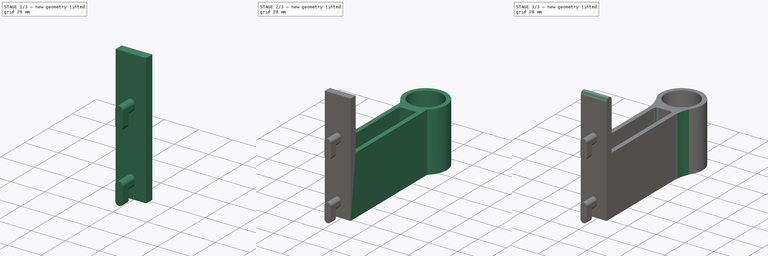
[diagram: build sequence overview — one tinted view per stage of 3, left to right]
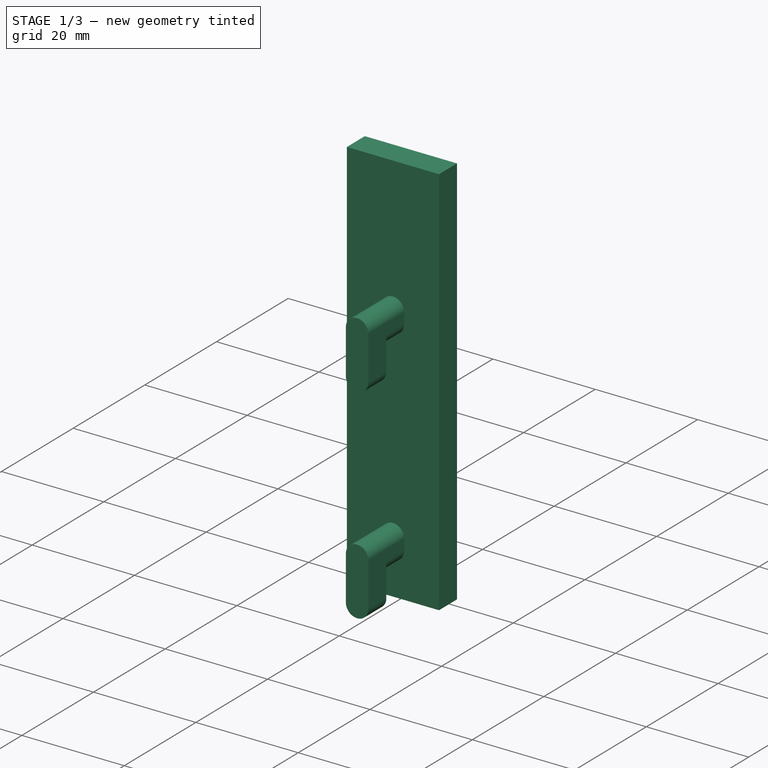
[diagram: stage 1 of 3 — iso view after this stage's code; geometry added in this stage tinted green]
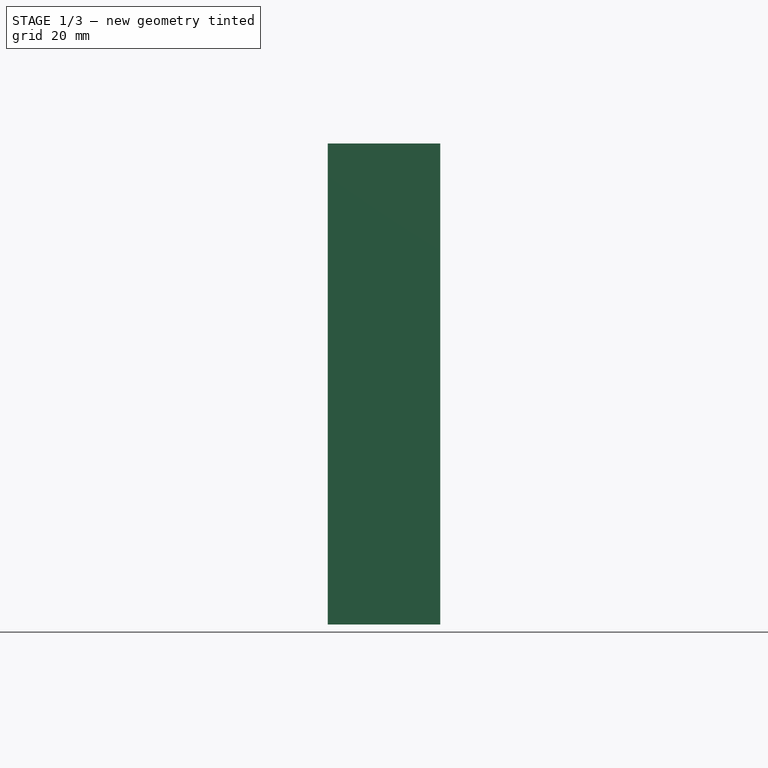
[diagram: stage 1 of 3 — front view after this stage's code; geometry added in this stage tinted green]
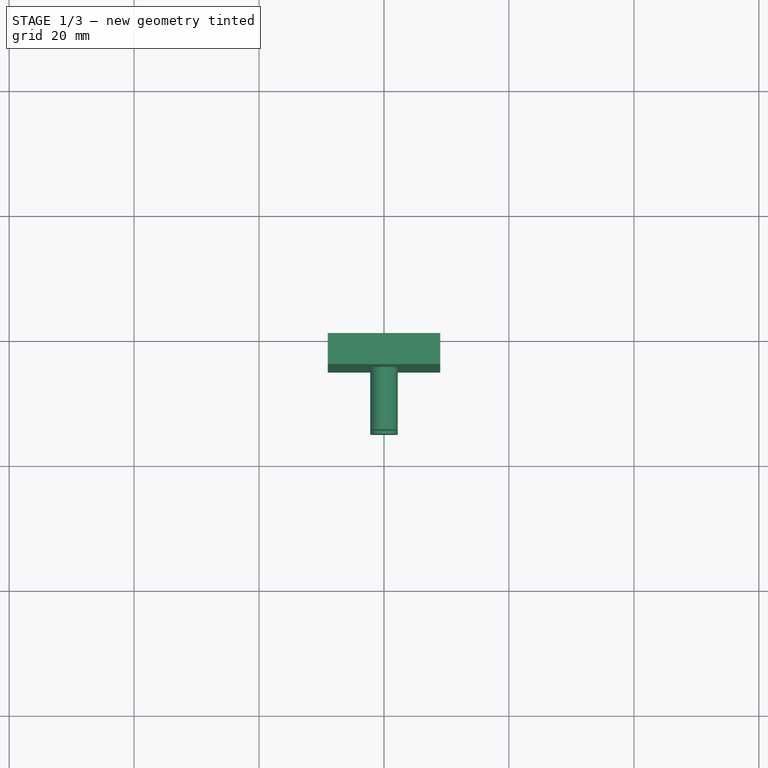
[diagram: stage 1 of 3 — top view after this stage's code; geometry added in this stage tinted green]
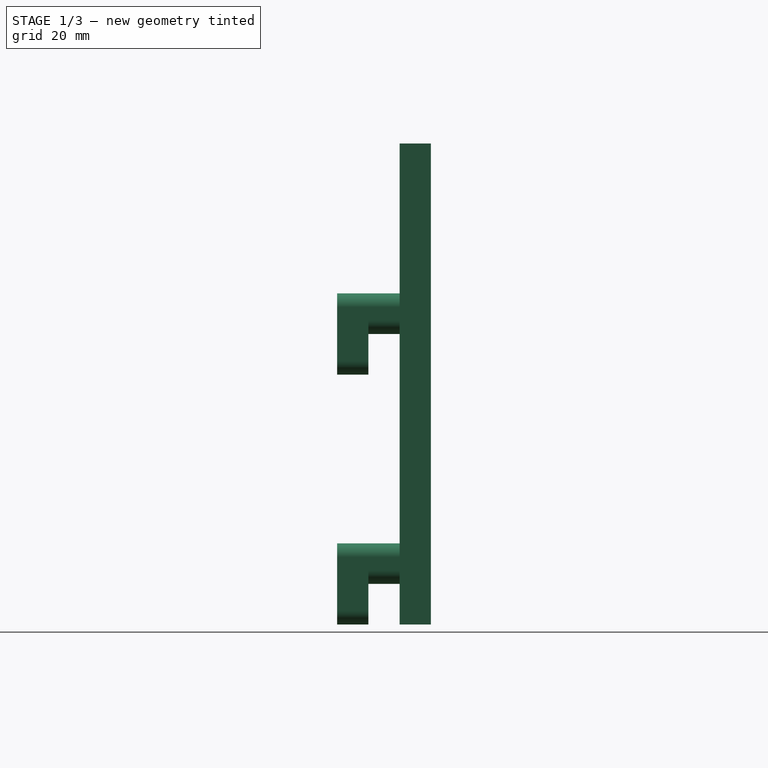
[diagram: stage 1 of 3 — right view after this stage's code; geometry added in this stage tinted green]
FCSTD DOCUMENT  (FreeCAD 1.0R39285 (Git))
Label: 01_Deburring_Tool_Holder
License: All rights reserved
LicenseURL: https://en.wikipedia.org/wiki/All_rights_reserved
objects: Sketcher::SketchObject×6, PartDesign::Pad×5, PartDesign::Fillet×2, PartDesign::Pocket×1, PartDesign::Body×1
note: 37 computed .brp shape members not serialized (recipe doc carries the construction recipe); baked Part::Feature solids carry a one-line shape summary decoded from their .brp

FEATURE [Sketcher::SketchObject] Sketch
  ArcFitTolerance = 1e-06
  AttachmentSupport = -> [XZ_Plane]
  FullyConstrained = true
  MakeInternals = false
  MapMode = 5
  Placement = pos=(0,0,0) rot=(1,0,0;1.5708rad)
  sketch-geometry (4):
    g0: LineSegment StartX=-9 StartY=77 StartZ=0 EndX=-9 EndY=0 EndZ=0
    g1: LineSegment StartX=-9 StartY=0 StartZ=0 EndX=9 EndY=0 EndZ=0
    g2: LineSegment StartX=9 StartY=0 StartZ=0 EndX=9 EndY=77 EndZ=0
    g3: LineSegment StartX=9 StartY=77 StartZ=0 EndX=-9 EndY=77 EndZ=0
  constraints (12):
    c: Coincident(g0,g1)
    c: Coincident(g1,g2)
    c: Coincident(g2,g3)
    c: Coincident(g3,g0)
    c: Vertical(g0)
    c: Vertical(g2)
    c: Horizontal(g1)
    c: Horizontal(g3)
    c: Distance(g0,g2) = 18
    c: Distance(g1,g3) = 77
    c: DistanceY(g-1,g0) = 0
    c: DistanceX(g0,g-1) = 9
FEATURE [PartDesign::Pad] Pad
  Direction = (0,-1,2e-16)
  Length = 5
  Length2 = 10
  Placement = pos=(0,0,0) rot=(1,0,0;1.5708rad)
  Profile = -> Sketch
  ReferenceAxis = -> Sketch [N_Axis]
  Refine = true
  Suppressed = false
  Type = 0
FEATURE [Sketcher::SketchObject] Sketch001
  ArcFitTolerance = 1e-06
  AttachmentSupport = -> [Pad]
  FullyConstrained = true
  MakeInternals = false
  MapMode = 5
  Placement = pos=(0,-5,0) rot=(1,0,0;1.5708rad)
  sketch-geometry (8):
    g0: ArcOfCircle CenterX=0 CenterY=50.8 CenterZ=0 NormalX=0 NormalY=0 NormalZ=1 AngleXU=0 Radius=2.2 StartAngle=-9e-16 EndAngle=3.14159
    g1: ArcOfCircle CenterX=-1e-16 CenterY=48.7 CenterZ=0 NormalX=0 NormalY=0 NormalZ=1 AngleXU=0 Radius=2.2 StartAngle=3.14159 EndAngle=6.28319
    g2: LineSegment StartX=2.2 StartY=50.8 StartZ=0 EndX=2.2 EndY=48.7 EndZ=0
    g3: LineSegment StartX=-2.2 StartY=50.8 StartZ=0 EndX=-2.2 EndY=48.7 EndZ=0
    g4: ArcOfCircle CenterX=0 CenterY=8.7 CenterZ=0 NormalX=0 NormalY=0 NormalZ=1 AngleXU=0 Radius=2.2 StartAngle=3.14159 EndAngle=6.28319
    g5: ArcOfCircle CenterX=0 CenterY=10.8 CenterZ=0 NormalX=0 NormalY=0 NormalZ=1 AngleXU=0 Radius=2.2 StartAngle=0 EndAngle=3.14159
    g6: LineSegment StartX=-2.2 StartY=8.7 StartZ=0 EndX=-2.2 EndY=10.8 EndZ=0
    g7: LineSegment StartX=2.2 StartY=8.7 StartZ=0 EndX=2.2 EndY=10.8 EndZ=0
  constraints (20):
    c: Tangent(g0,g2) = 1.5708
    c: Tangent(g0,g3) = -1.5708
    c: Tangent(g1,g2) = 1.5708
    c: Tangent(g1,g3) = -1.5708
    c: Equal(g0,g1)
    c: Vertical(g3)
    c: Distance(g0,g1) = 2.1
    c: Radius(g0) = 2.2
    c: Tangent(g4,g6) = 1.5708
    c: Tangent(g4,g7) = -1.5708
    c: Tangent(g5,g6) = 1.5708
    c: Tangent(g5,g7) = -1.5708
    c: Equal(g4,g5)
    c: Vertical(g7)
    c: Distance(g4,g5) = 2.1
    c: Radius(g4) = 2.2
    c: Vertical(g4,g0)
    c: DistanceX(g4,g-1) = 0
    c: DistanceY(g-1,g5) = 10.8
    c: DistanceY(g5,g0) = 40
FEATURE [PartDesign::Pad] Pad001
  BaseFeature = -> Pad
  Direction = (0,-1,2e-16)
  Length = 5
  Length2 = 10
  Placement = pos=(0,0,0) rot=(1,0,0;1.5708rad)
  Profile = -> Sketch001
  ReferenceAxis = -> Sketch001 [N_Axis]
  Refine = true
  Suppressed = false
  Type = 0
FEATURE [Sketcher::SketchObject] Sketch002
  ArcFitTolerance = 1e-06
  AttachmentSupport = -> [Pad001]
  FullyConstrained = true
  MakeInternals = false
  MapMode = 5
  Placement = pos=(0,-10,0) rot=(1,0,0;1.5708rad)
  sketch-geometry (12):
    g0: LineSegment StartX=-2.2 StartY=10.8 StartZ=0 EndX=-2.2 EndY=2.2 EndZ=0
    g1: LineSegment StartX=2.2 StartY=10.8 StartZ=0 EndX=2.2 EndY=2.2 EndZ=0
    g2: GeomPoint [constr] X=0 Y=10.8 Z=0
    g3: GeomPoint [constr] X=0 Y=2.2 Z=0
    g4: ArcOfCircle CenterX=0 CenterY=10.8 CenterZ=0 NormalX=0 NormalY=0 NormalZ=1 AngleXU=0 Radius=2.2 StartAngle=0 EndAngle=3.14159
    g5: ArcOfCircle CenterX=0 CenterY=2.2 CenterZ=0 NormalX=0 NormalY=0 NormalZ=1 AngleXU=0 Radius=2.2 StartAngle=3.14159 EndAngle=6.28319
    g6: LineSegment StartX=-2.2 StartY=50.8 StartZ=0 EndX=-2.2 EndY=42.2 EndZ=0
    g7: LineSegment StartX=2.2 StartY=50.8 StartZ=0 EndX=2.2 EndY=42.2 EndZ=0
    g8: GeomPoint [constr] X=2e-16 Y=50.8 Z=0
    g9: GeomPoint [constr] X=0 Y=42.2 Z=0
    g10: ArcOfCircle CenterX=2e-16 CenterY=50.8 CenterZ=0 NormalX=0 NormalY=0 NormalZ=1 AngleXU=0 Radius=2.2 StartAngle=-9e-16 EndAngle=3.14159
    g11: ArcOfCircle CenterX=0 CenterY=42.2 CenterZ=0 NormalX=0 NormalY=0 NormalZ=1 AngleXU=0 Radius=2.2 StartAngle=3.14159 EndAngle=6.28319
  constraints (32):
    c: Distance(g0) = 8.6
    c: Vertical(g0)
    c: Distance(g1) = 8.6
    c: Vertical(g1)
    c: DistanceX(g0,g1) = 4.4
    c: Horizontal(g0,g1)
    c: Horizontal(g2,g0)
    c: Horizontal(g3,g0)
    c: DistanceY(g-1,g3) = 2.2
    c: DistanceX(g3,g-1) = 0
    c: Coincident(g5,g3)
    c: Coincident(g5,g1)
    c: Coincident(g5,g0)
    c: Coincident(g4,g0)
    c: Coincident(g1,g4)
    c: Coincident(g4,g2)
    c: Distance(g6) = 8.6
    c: Vertical(g6)
    c: Distance(g7) = 8.6
    c: Vertical(g7)
    c: DistanceX(g6,g7) = 4.4
    c: Horizontal(g6,g7)
    c: Horizontal(g8,g6)
    c: Horizontal(g9,g6)
    c: DistanceX(g9,g-1) = 0
    c: DistanceY(g2,g8) = 40
    c: Coincident(g10,g6)
    c: Coincident(g7,g10)
    c: Coincident(g10,g8)
    c: Coincident(g11,g6)
    c: Coincident(g7,g11)
    c: Coincident(g11,g9)
FEATURE [PartDesign::Pad] Pad002
  BaseFeature = -> Pad001
  Direction = (0,-1,2e-16)
  Length = 5
  Length2 = 10
  Placement = pos=(0,0,0) rot=(1,0,0;1.5708rad)
  Profile = -> Sketch002
  ReferenceAxis = -> Sketch002 [N_Axis]
  Refine = true
  Suppressed = false
  Type = 0
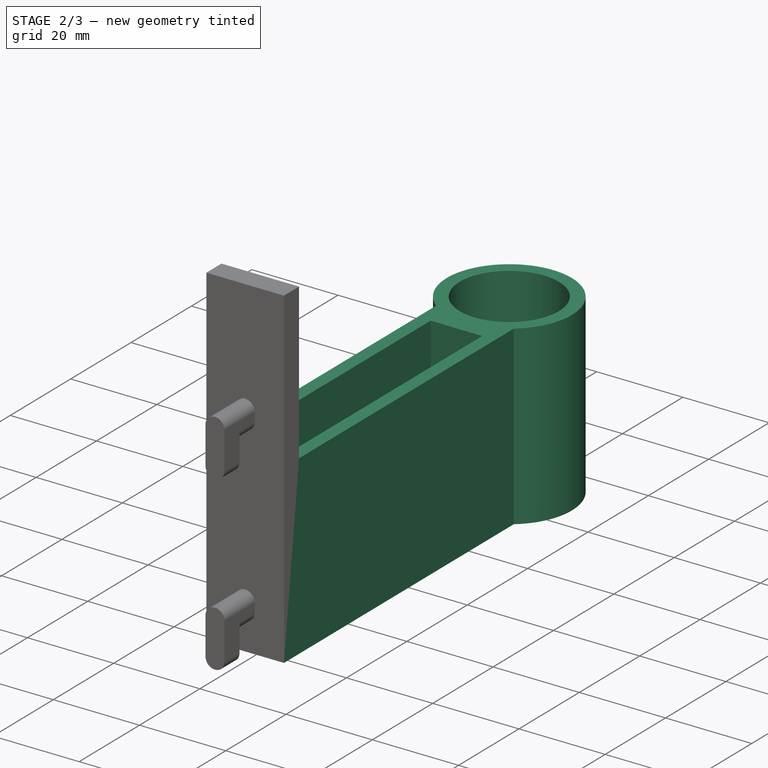
[diagram: stage 2 of 3 — iso view after this stage's code; geometry added in this stage tinted green]
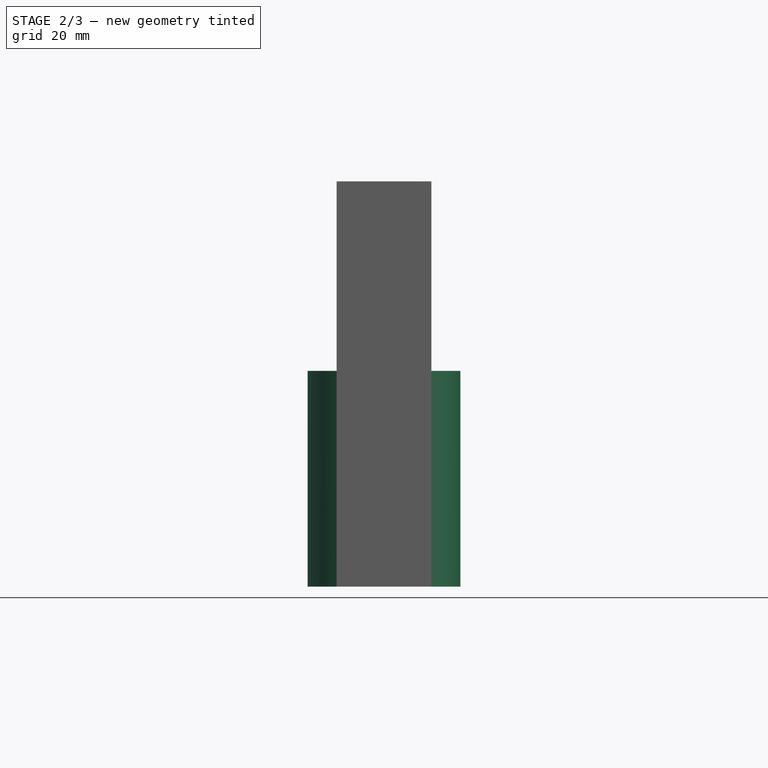
[diagram: stage 2 of 3 — front view after this stage's code; geometry added in this stage tinted green]
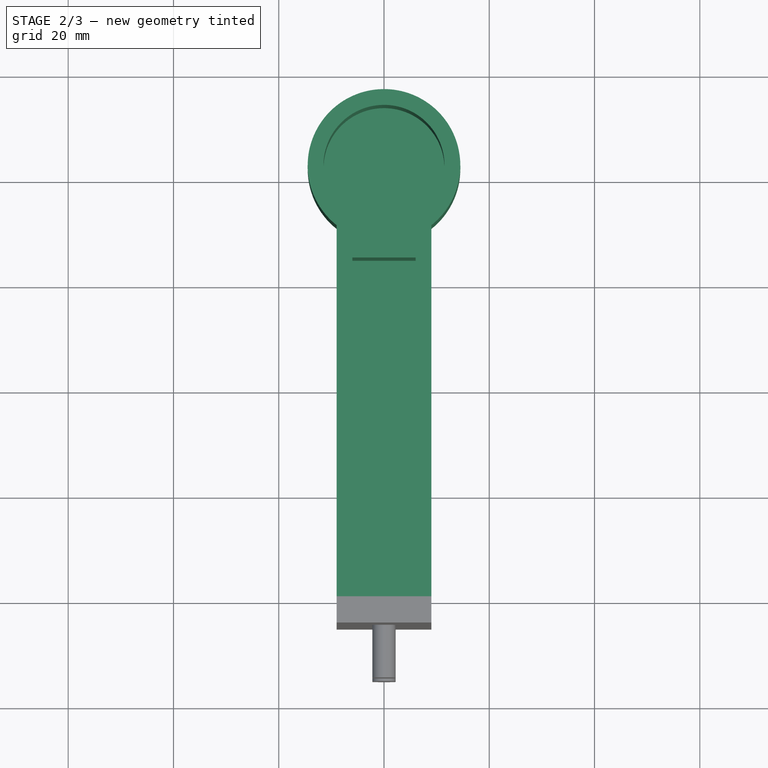
[diagram: stage 2 of 3 — top view after this stage's code; geometry added in this stage tinted green]
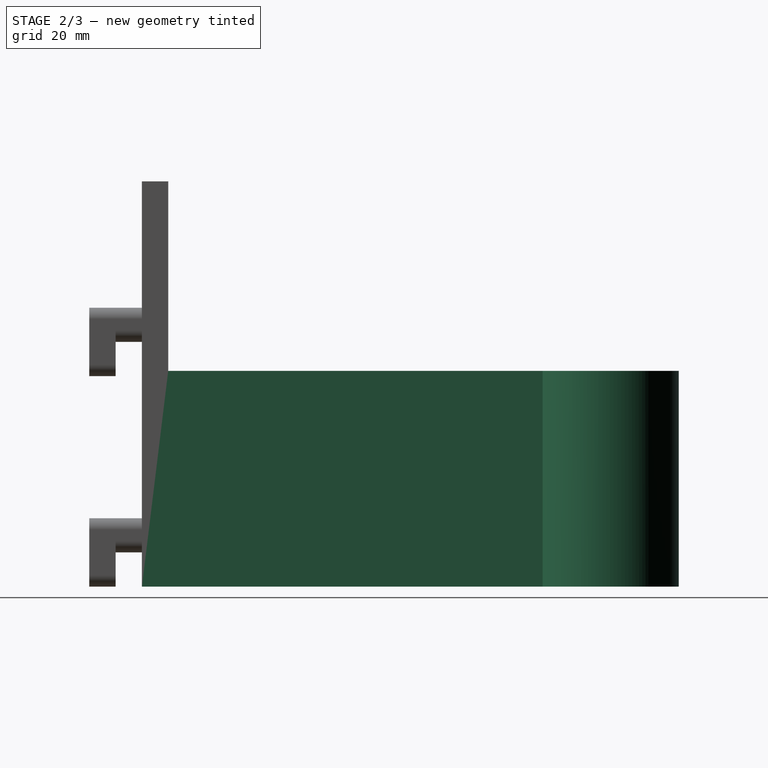
[diagram: stage 2 of 3 — right view after this stage's code; geometry added in this stage tinted green]
FEATURE [Sketcher::SketchObject] Sketch003
  ArcFitTolerance = 1e-06
  AttachmentSupport = -> [Pad002]
  FullyConstrained = true
  MakeInternals = false
  MapMode = 5
  Placement = pos=(0,0,0) rot=(1,0,0;3.14159rad)
  sketch-geometry (5):
    g0: Circle CenterX=0 CenterY=-82.5 CenterZ=0 NormalX=0 NormalY=0 NormalZ=1 AngleXU=0 Radius=14.5
    g1: LineSegment StartX=-9 StartY=0 StartZ=0 EndX=-9 EndY=-71.1312 EndZ=0
    g2: LineSegment StartX=9 StartY=0 StartZ=0 EndX=9 EndY=-71.1312 EndZ=0
    g3: LineSegment StartX=-9 StartY=0 StartZ=0 EndX=9 EndY=0 EndZ=0
    g4: LineSegment StartX=-9 StartY=-71.1312 StartZ=0 EndX=9 EndY=-71.1312 EndZ=0
  constraints (15):
    c: Diameter(g0) = 29
    c: DistanceX(g0,g-1) = 0
    c: DistanceY(g0,g-1) = 82.5
    c: Vertical(g1)
    c: Vertical(g2)
    c: DistanceY(g1,g-1) = 0
    c: DistanceY(g2,g-1) = 0
    c: DistanceX(g1,g-1) = 9
    c: DistanceX(g-1,g2) = 9
    c: PointOnObject(g1,g0)
    c: PointOnObject(g2,g0)
    c: Coincident(g3,g1)
    c: Coincident(g3,g2)
    c: Coincident(g4,g1)
    c: Coincident(g4,g2)
FEATURE [PartDesign::Pad] Pad003
  BaseFeature = -> Pad002
  Direction = (0,0,-1)
  Length = 5
  Length2 = 10
  Placement = pos=(0,0,0) rot=(1,0,0;1.5708rad)
  Profile = -> Sketch003
  ReferenceAxis = -> Sketch003 [N_Axis]
  Refine = true
  Reversed = true
  Suppressed = false
  Type = 0
FEATURE [Sketcher::SketchObject] Sketch004
  ArcFitTolerance = 1e-06
  AttachmentSupport = -> [Pad003]
  FullyConstrained = true
  MakeInternals = false
  MapMode = 5
  Placement = pos=(0,0,5) rot=(0,0,1;3.14159rad)
  sketch-geometry (10):
    g0: Circle CenterX=0 CenterY=-82.5 CenterZ=0 NormalX=0 NormalY=0 NormalZ=1 AngleXU=0 Radius=14.5
    g1: Circle CenterX=0 CenterY=-82.5 CenterZ=0 NormalX=0 NormalY=0 NormalZ=1 AngleXU=0 Radius=11.5
    g2: LineSegment StartX=-9 StartY=0 StartZ=0 EndX=9 EndY=0 EndZ=0
    g3: LineSegment StartX=-9 StartY=0 StartZ=0 EndX=-9 EndY=-71.1312 EndZ=0
    g4: LineSegment StartX=9 StartY=0 StartZ=0 EndX=9 EndY=-71.1312 EndZ=0
    g5: LineSegment StartX=-6 StartY=0 StartZ=0 EndX=-6 EndY=-65 EndZ=0
    g6: LineSegment StartX=6 StartY=0 StartZ=0 EndX=6 EndY=-65 EndZ=0
    g7: LineSegment StartX=-6 StartY=-65 StartZ=0 EndX=6 EndY=-65 EndZ=0
    g8: ArcOfCircle CenterX=0 CenterY=-82.5 CenterZ=0 NormalX=0 NormalY=0 NormalZ=1 AngleXU=0 Radius=14.5 StartAngle=0.901174 EndAngle=2.24042
    g9: LineSegment StartX=-6 StartY=0 StartZ=0 EndX=6 EndY=0 EndZ=0
  constraints (29):
    c: Diameter(g0) = 29
    c: DistanceY(g0,g-1) = 82.5
    c: DistanceX(g0,g-1) = 0
    c: Diameter(g1) = 23
    c: Coincident(g1,g0)
    c: Distance(g2) = 18
    c: Horizontal(g2)
    c: DistanceY(g2,g-1) = 0
    c: DistanceX(g2,g-1) = 9
    c: Coincident(g3,g2)
    c: PointOnObject(g3,g0)
    c: Vertical(g3)
    c: Coincident(g4,g2)
    c: Distance(g5) = 65
    c: Vertical(g5)
    c: PointOnObject(g5,g2)
    c: Distance(g6) = 65
    c: Vertical(g6)
    c: PointOnObject(g6,g2)
    c: DistanceX(g5,g-1) = 6
    c: DistanceX(g-1,g6) = 6
    c: Coincident(g7,g5)
    c: Coincident(g7,g6)
    c: Coincident(g8,g3)
    c: Coincident(g8,g4)
    c: Coincident(g8,g0)
    c: Coincident(g9,g5)
    c: Coincident(g9,g6)
    c: Vertical(g4)
FEATURE [PartDesign::Pad] Pad004
  BaseFeature = -> Pad003
  Direction = (0,0,1)
  Length = 36
  Length2 = 10
  Placement = pos=(0,0,0) rot=(1,0,0;1.5708rad)
  Profile = -> Sketch004
  ReferenceAxis = -> Sketch004 [N_Axis]
  Refine = true
  Suppressed = false
  Type = 0
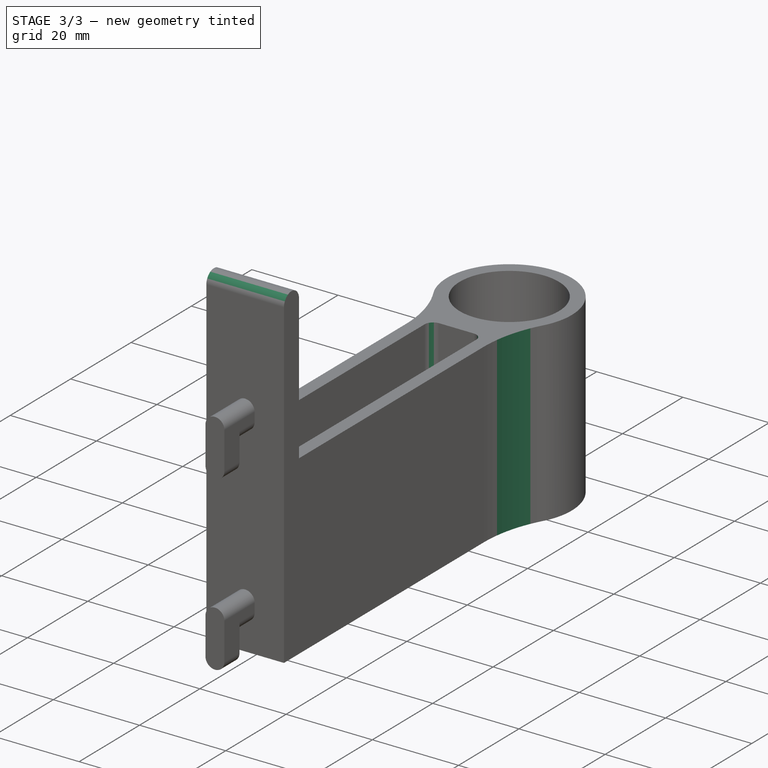
[diagram: stage 3 of 3 — iso view after this stage's code; geometry added in this stage tinted green]
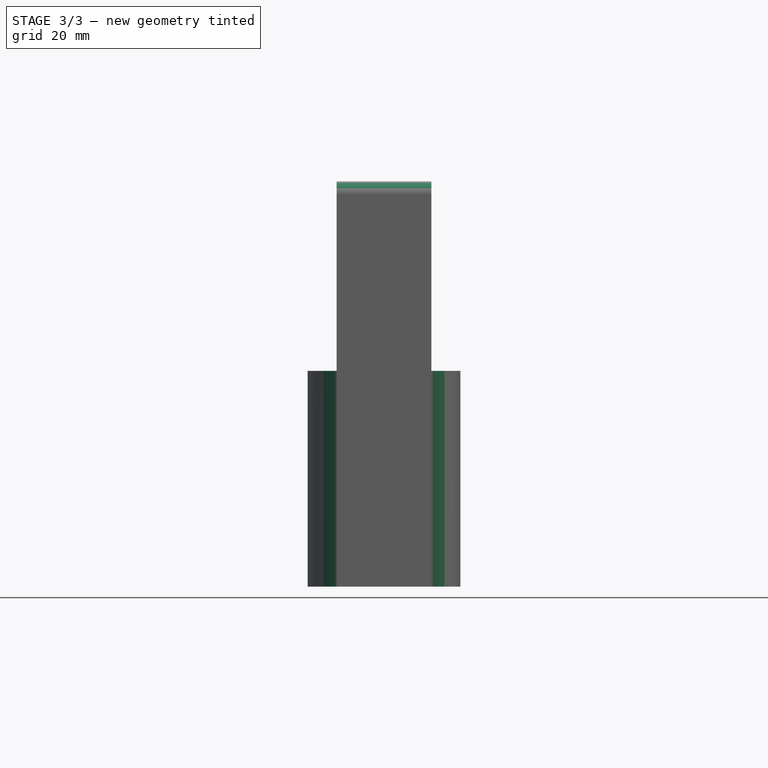
[diagram: stage 3 of 3 — front view after this stage's code; geometry added in this stage tinted green]
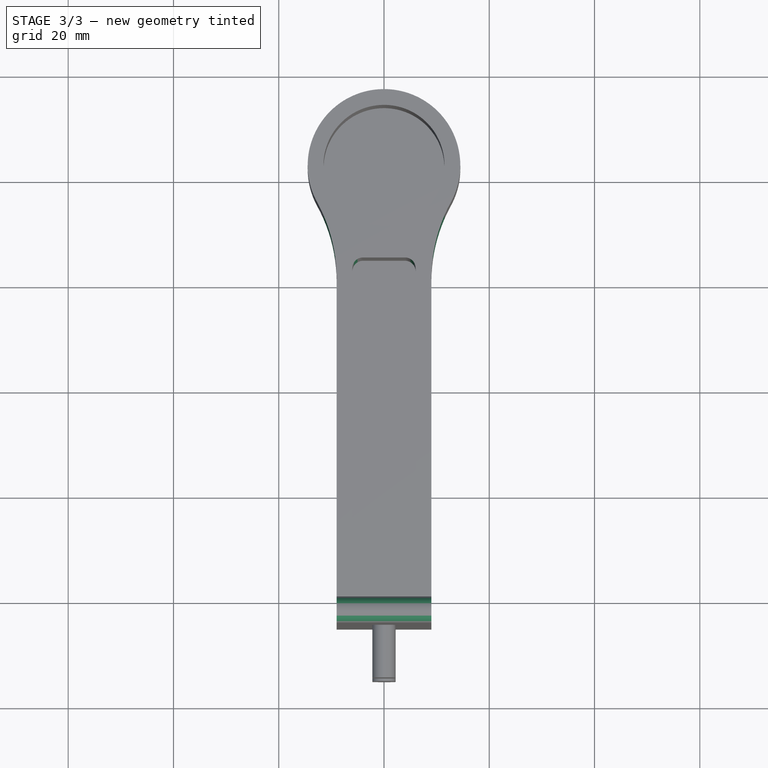
[diagram: stage 3 of 3 — top view after this stage's code; geometry added in this stage tinted green]
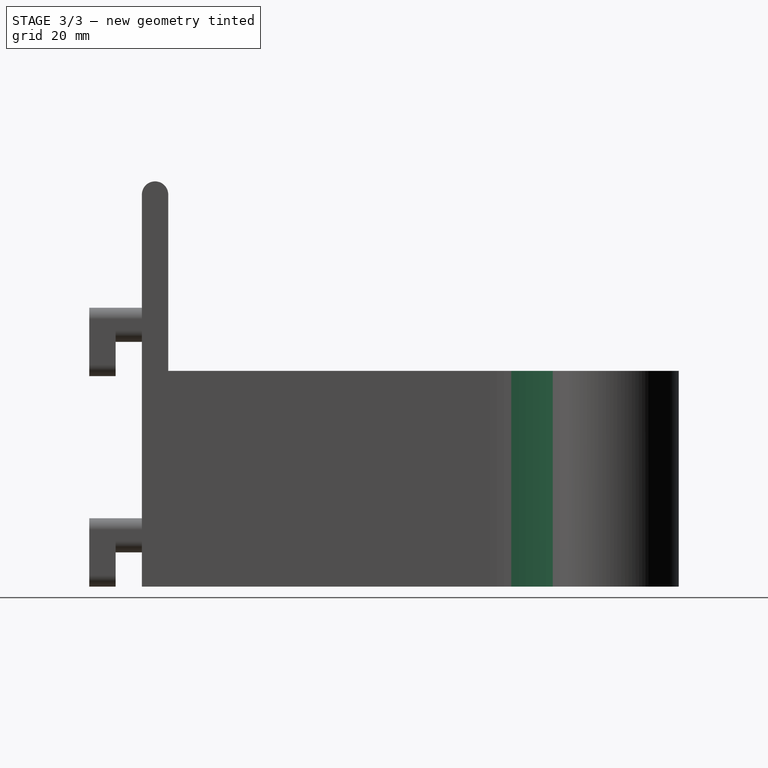
[diagram: stage 3 of 3 — right view after this stage's code; geometry added in this stage tinted green]
FEATURE [PartDesign::Fillet] Fillet
  Base = -> Pad004 [Edge48,Edge53]
  BaseFeature = -> Pad004
  Placement = pos=(0,0,0) rot=(1,0,0;1.5708rad)
  Radius = 30
  Refine = true
  SupportTransform = false
  Suppressed = false
  UseAllEdges = false
FEATURE [PartDesign::Fillet] Fillet001
  Base = -> Fillet [Edge69,Edge67,Edge42,Edge40]
  BaseFeature = -> Fillet
  Placement = pos=(0,0,0) rot=(1,0,0;1.5708rad)
  Radius = 2
  Refine = true
  SupportTransform = false
  Suppressed = false
  UseAllEdges = false
FEATURE [Sketcher::SketchObject] Sketch005
  ArcFitTolerance = 1e-06
  AttachmentSupport = -> [Fillet001]
  FullyConstrained = true
  MakeInternals = false
  MapMode = 5
  Placement = pos=(-9,0,0) rot=(0.707107,0,-0.707107;3.14159rad)
  sketch-geometry (5):
    g0: LineSegment StartX=-77.5 StartY=5 StartZ=0 EndX=-77.5 EndY=9e-16 EndZ=0
    g1: LineSegment StartX=-77.5 StartY=5 StartZ=0 EndX=-74.5 EndY=5 EndZ=0
    g2: LineSegment StartX=-77.5 StartY=9e-16 StartZ=0 EndX=-74.5 EndY=9e-16 EndZ=0
    g3: GeomPoint [constr] X=-74.5 Y=2.5 Z=0
    g4: ArcOfCircle CenterX=-74.5 CenterY=2.5 CenterZ=0 NormalX=0 NormalY=0 NormalZ=1 AngleXU=0 Radius=2.5 StartAngle=1.5708 EndAngle=4.71239
  constraints (14):
    c: Distance(g0) = 5
    c: Vertical(g0)
    c: Distance(g1) = 3
    c: Horizontal(g1)
    c: Coincident(g1,g0)
    c: Distance(g2) = 3
    c: Horizontal(g2)
    c: Coincident(g2,g0)
    c: Vertical(g1,g3)
    c: Coincident(g4,g3)
    c: Coincident(g4,g1)
    c: Coincident(g4,g2)
    c: DistanceX(g3,g-1) = 74.5
    c: DistanceY(g3,g-1) = -2.5
FEATURE [PartDesign::Pocket] Pocket
  BaseFeature = -> Fillet001
  Direction = (1,0,2e-16)
  Length = 5
  Length2 = 5
  Placement = pos=(0,0,0) rot=(1,0,0;1.5708rad)
  Profile = -> Sketch005
  ReferenceAxis = -> Sketch005 [N_Axis]
  Refine = true
  Suppressed = false
  Type = 1
FEATURE [PartDesign::Body] Body
  AllowCompound = false
  Group = -> [Sketch,Pad,Sketch001,Pad001,Sketch002,Pad002,Sketch003,Pad003,Sketch004,Pad004,Fillet,Fillet001,Sketch005,Pocket]
  Origin = -> Origin
  Tip = -> Pocket
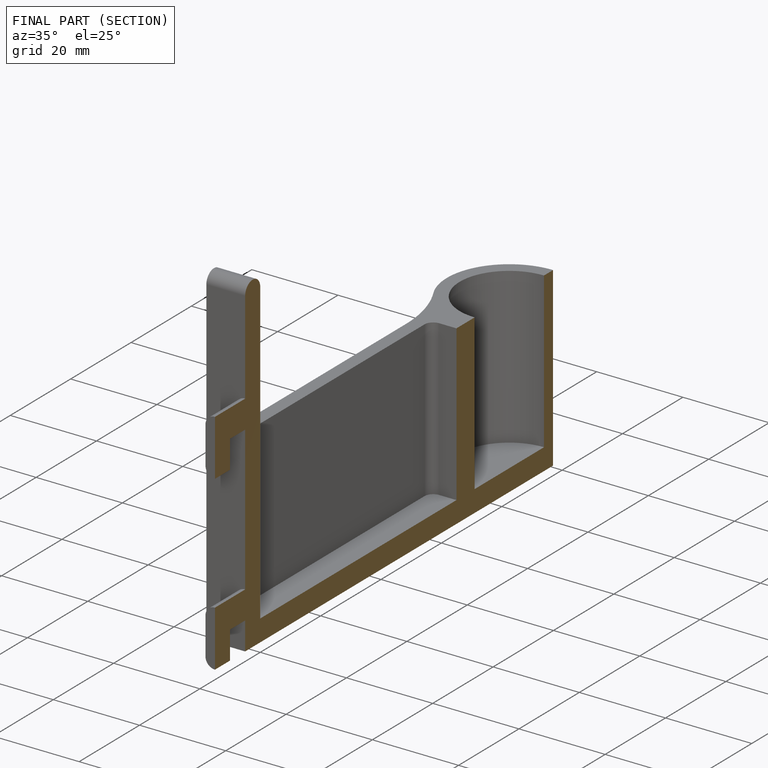
[diagram: finished part — half-section view (interior)]
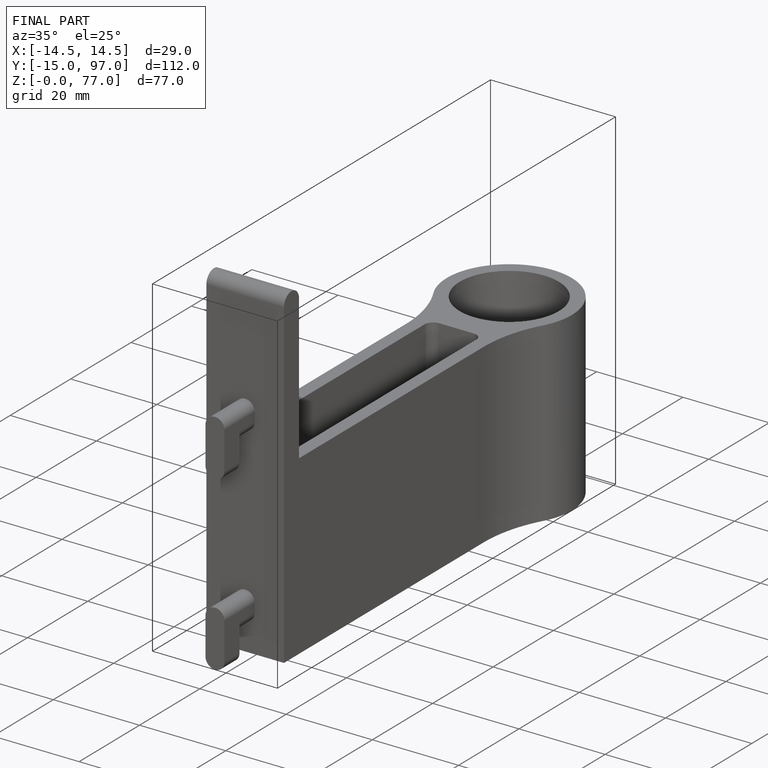
[diagram: finished part — iso view with bounding-box wireframe]
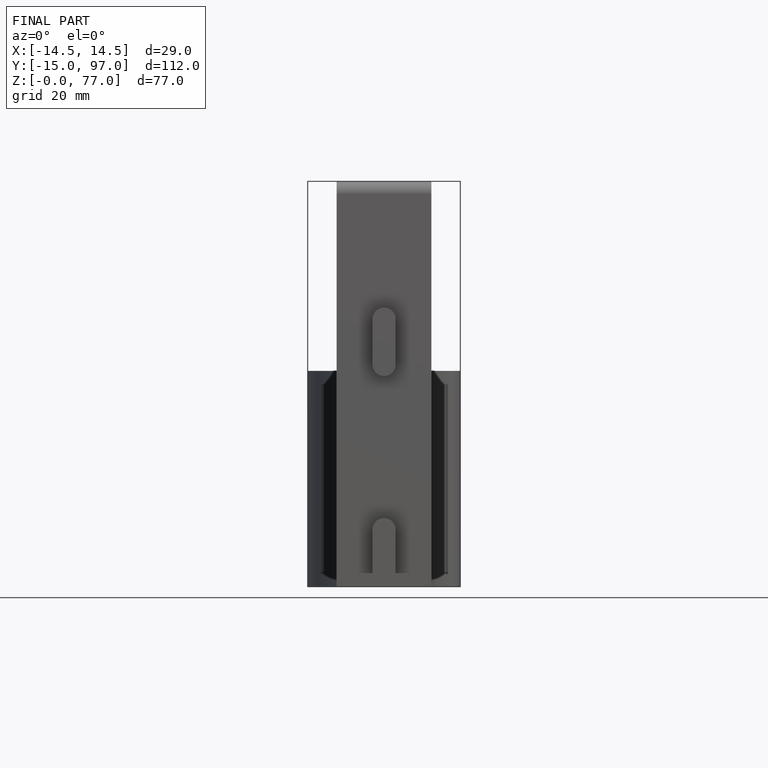
[diagram: finished part — front view with bounding-box wireframe]
